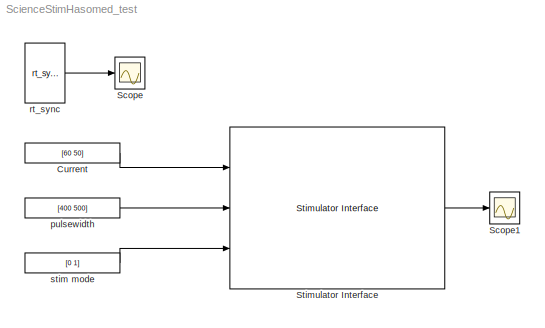
MODEL ScienceStimHasomed_test
KIND model
BLOCK [Constant] Current
  SID = 1
  Value = [60 50]
BLOCK [Scope] Scope
  DataFormat = StructureWithTime
  Floating = off
  NumInputPorts = 1
  Ports = [1]
  SID = 2
  SampleTime = 0
  ShowLegends = off
  YMax = 0.05
  YMin = 0.05
BLOCK [Scope] Scope1
  DataFormat = StructureWithTime
  Floating = off
  NumInputPorts = 1
  Ports = [1]
  SID = 3
  SampleTime = 0
  SaveName = ScopeData1
  ShowLegends = off
  YMax = 0.1
  YMin = 0
BLOCK [Reference] Stimulator Interface  REF=ScienceStimHasomed_Lib/Stimulator Interface
  Ports = [3, 1]
  SID = 4
  SourceBlock = ScienceStimHasomed_Lib/Stimulator Interface
  SourceType = Stimulator Interface (RehaStim - Hasomed GmbH)
  Ts = 0.05
  channellf = []
  channelstim = [1 2]
  com_port = COM3
  dtflag = on
  nfactor = []
  outflag = on
  tsone = 0
  tstwo = 4
BLOCK [Constant] pulsewidth
  SID = 5
  Value = [400 500]
BLOCK [Reference] rt_sync  REF=rtsync_lib/rt_sync  (lib defined in mdl_0a870ea049d0)
  Ports = [0, 1]
  SID = 6
  SourceBlock = rtsync_lib/rt_sync
  Ts = 0.05
  outflag = on
  strict = off
BLOCK [Constant] stim mode
  SID = 7
  Value = [0 1]
LINE Current:1 -> Stimulator Interface:1
LINE Stimulator Interface:1 -> Scope1:1
LINE pulsewidth:1 -> Stimulator Interface:2
LINE rt_sync:1 -> Scope:1
LINE stim mode:1 -> Stimulator Interface:3
